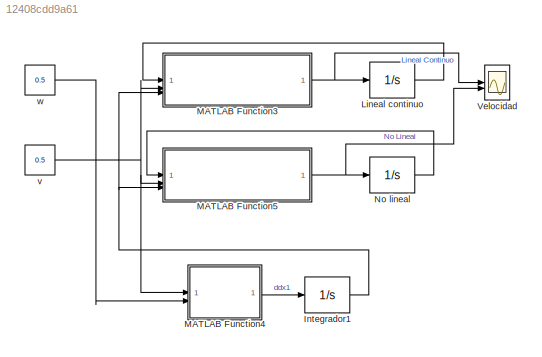
MODEL slx_12408cdd9a61
KIND model
CONFIG AbsTol = auto
CONFIG EnableMultiTasking = off
CONFIG FixedStep = auto
CONFIG MaxStep = auto
CONFIG MinStep = auto
CONFIG RelTol = 1e-3
CONFIG SampleTimeConstraint = Unconstrained
CONFIG SolverName = VariableStepAuto
CONFIG StartTime = 0.0
CONFIG StopTime = 10.0
BLOCK [Integrator] Integrador1
  ContinuousStateAttributes = "dx"
BLOCK [Integrator] Lineal continuo
  ContinuousStateAttributes = "dx"
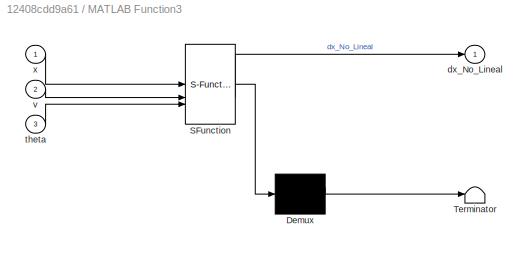
BLOCK [SubSystem] MATLAB Function3
  ErrorFcn = Stateflow.Translate.translate
  LibrarySourceBlock = simulink/User-Defined\nFunctions/MATLAB Function
  PermitHierarchicalResolution = ExplicitOnly
  SFBlockType = MATLAB Function
  TreatAsAtomicUnit = on
BLOCK [Demux] MATLAB Function3/ Demux 
  Outputs = 1
BLOCK [S-Function] MATLAB Function3/ SFunction 
  EnableBusSupport = on
  FunctionName = sf_sfun
  PortCounts = [3 2]
  SFcnIsStateOwnerBlock = off
  SFunctionDeploymentMode = off
  Tag = Stateflow S-Function 4
BLOCK [Terminator] MATLAB Function3/ Terminator 
BLOCK [Outport] MATLAB Function3/dx_No_Lineal
BLOCK [Inport] MATLAB Function3/theta
  Port = 3
BLOCK [Inport] MATLAB Function3/v
  Port = 2
BLOCK [Inport] MATLAB Function3/x
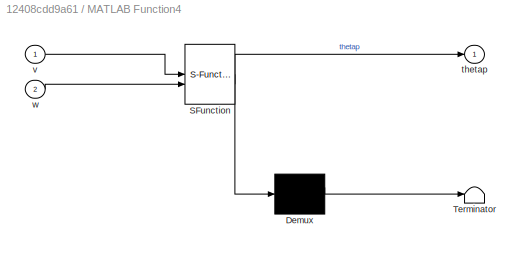
BLOCK [SubSystem] MATLAB Function4
  ErrorFcn = Stateflow.Translate.translate
  LibrarySourceBlock = simulink/User-Defined\nFunctions/MATLAB Function
  PermitHierarchicalResolution = ExplicitOnly
  SFBlockType = MATLAB Function
  TreatAsAtomicUnit = on
BLOCK [Demux] MATLAB Function4/ Demux 
  Outputs = 1
BLOCK [S-Function] MATLAB Function4/ SFunction 
  EnableBusSupport = on
  FunctionName = sf_sfun
  PortCounts = [2 2]
  SFcnIsStateOwnerBlock = off
  SFunctionDeploymentMode = off
  Tag = Stateflow S-Function 5
BLOCK [Terminator] MATLAB Function4/ Terminator 
BLOCK [Outport] MATLAB Function4/thetap
BLOCK [Inport] MATLAB Function4/v
BLOCK [Inport] MATLAB Function4/w
  Port = 2
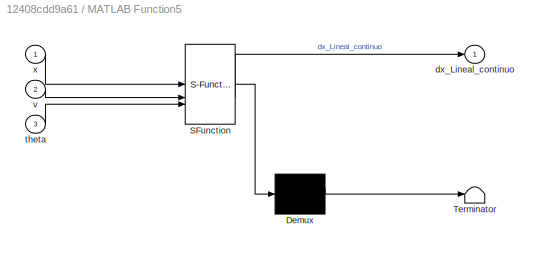
BLOCK [SubSystem] MATLAB Function5
  ErrorFcn = Stateflow.Translate.translate
  LibrarySourceBlock = simulink/User-Defined\nFunctions/MATLAB Function
  PermitHierarchicalResolution = ExplicitOnly
  SFBlockType = MATLAB Function
  TreatAsAtomicUnit = on
BLOCK [Demux] MATLAB Function5/ Demux 
  Outputs = 1
BLOCK [S-Function] MATLAB Function5/ SFunction 
  EnableBusSupport = on
  FunctionName = sf_sfun
  PortCounts = [3 2]
  SFcnIsStateOwnerBlock = off
  SFunctionDeploymentMode = off
  Tag = Stateflow S-Function 6
BLOCK [Terminator] MATLAB Function5/ Terminator 
BLOCK [Outport] MATLAB Function5/dx_Lineal_continuo
BLOCK [Inport] MATLAB Function5/theta
  Port = 3
BLOCK [Inport] MATLAB Function5/v
  Port = 2
BLOCK [Inport] MATLAB Function5/x
BLOCK [Integrator] No lineal
  ContinuousStateAttributes = "dx"
BLOCK [Scope] Velocidad
  Floating = off
  NumInputPorts = 2
  ScopeSpecificationString = Simulink.scopes.TimeScopeBlockCfg('CurrentConfiguration', extmgr.ConfigurationSet(extmgr.Configuration('Core','General UI',true),extmgr.Configuration('Core','Source UI',true),extmgr.Configuration('Sources','WiredSimulink',true,'DataLoggingVariableName','ScopeData1'),extmgr.Configuration('Visuals','Time Domain',true,'SerializedDisplays',{struct('MinYLimReal','-1.32443','MaxYLimReal','2.82139','YLab...<+1531ch>
BLOCK [Constant] v
  Value = 0.5
BLOCK [Constant] w
  Value = 0.5
NET Integrador1:1 -> MATLAB Function3:3, MATLAB Function5:3
LINE Lineal continuo:1 -> MATLAB Function3:1
NET MATLAB Function3:1 -> Lineal continuo:1, Velocidad:1
LINE MATLAB Function4:1 -> Integrador1:1
NET MATLAB Function5:1 -> No lineal:1, Velocidad:2
LINE No lineal:1 -> MATLAB Function5:1
NET v:1 -> MATLAB Function3:2, MATLAB Function4:1, MATLAB Function5:2
LINE w:1 -> MATLAB Function4:2
note: NET lines group one-source signal fan-out (src -> all destinations, sorted); 1:1 wires keep LINE
CHART MATLAB Function3 states=1 transitions=1
  STATE_LABEL 'eML_blk_kernel()'
  STATE_LABEL 'SCRIPT:\nfunction dx_No_Lineal = fcn(x, v, theta)\ndx_No_Lineal= v*cos(theta);\ndx_Lineal_continuo = -v*sin(theta)*theta\ndx_Lineal_discreto = x -v*sin(theta)*theta\n'
CHART MATLAB Function4 states=1 transitions=1
  STATE_LABEL 'eML_blk_kernel()'
  STATE_LABEL 'SCRIPT:\nfunction thetap = fcn(v,w)\nr=1;\nw=v/r;\nthetap=w;'
CHART MATLAB Function5 states=1 transitions=1
  STATE_LABEL 'eML_blk_kernel()'
  STATE_LABEL 'SCRIPT:\nfunction dx_Lineal_continuo = fcn(x, v, theta)\ndx_No_Lineal= v*cos(theta);\ndx_Lineal_continuo = -v*sin(theta)*theta\ndx_Lineal_discreto = x -v*sin(theta)*theta\n'
CHART  states=0 transitions=0
CHART  states=0 transitions=0
CHART  states=0 transitions=0
